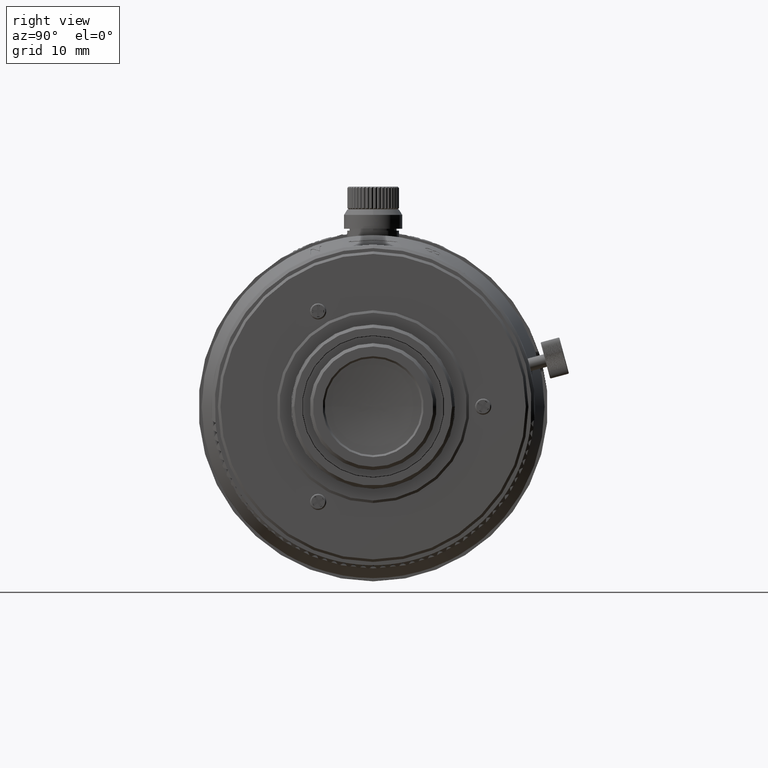
[diagram: clean part render]
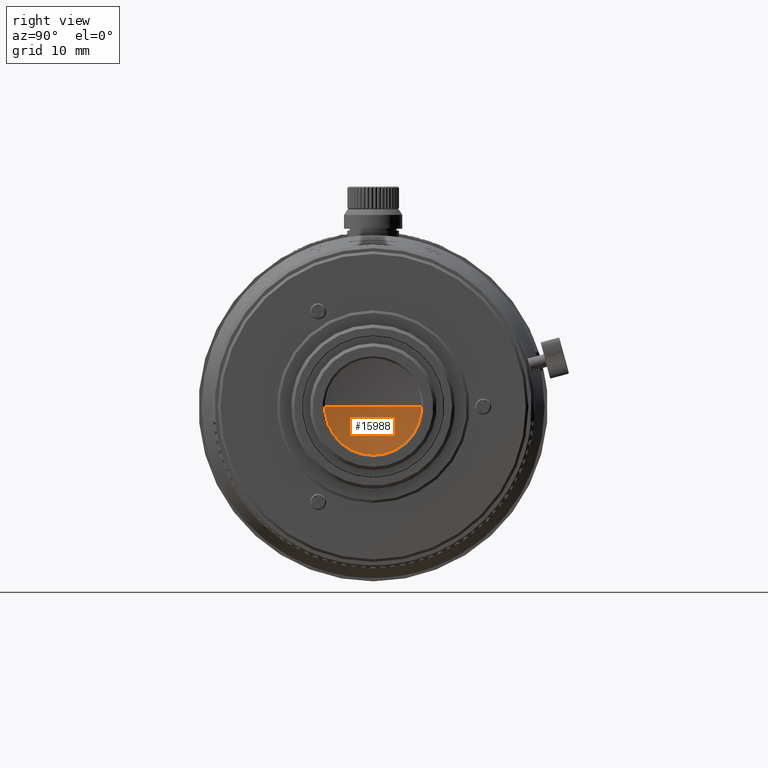
[diagram: same view with one face highlighted and labeled with its STEP entity id]
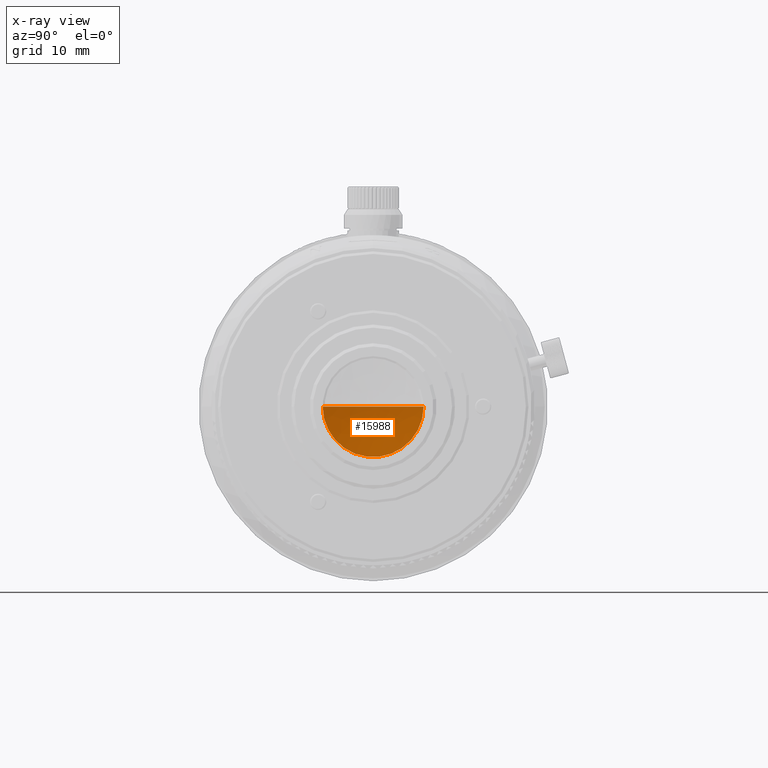
[diagram: x-ray of the same camera — body ghosted, the highlighted face saturated]
A machine part, right view. The second image highlights one B-rep face of the part: STEP entity #15988.
The next image is the same camera in x-ray: the body ghosted, the highlighted face saturated — about 0% of this face is hidden behind the body in this view.
In plain terms, the highlighted face is a freeform B-spline surface patch.
Its self-contained STEP definition (entity closure, byte-faithful):
#13 = CARTESIAN_POINT ( 'NONE',  ( 2687.098544783024408, 1135.370208846026799, -5.218483078053726132 ) ) ;
#2168 = CARTESIAN_POINT ( 'NONE',  ( 2687.609112648156497, 1124.960967475150483, 9.552244827424514200E-16 ) ) ;
#5192 = CARTESIAN_POINT ( 'NONE',  ( 2687.098544783023499, 1130.151725767972948, 3.195399298971773792E-16 ) ) ;
#5459 = CARTESIAN_POINT ( 'NONE',  ( 2687.609113230251751, 1132.760967307000101, 0.000000000000000000 ) ) ;
#5739 = VERTEX_POINT ( 'NONE', #42647 ) ;
#6766 = CARTESIAN_POINT ( 'NONE',  ( 2687.609113155169325, 1140.560967072188532, -15.59999953037704934 ) ) ;
#9187 = ORIENTED_EDGE ( 'NONE', *, *, #13316, .T. ) ;
#10018 = FACE_OUTER_BOUND ( 'NONE', #26251, .T. ) ;
#11165 = CARTESIAN_POINT ( 'NONE',  ( 2687.268972002157170, 1137.973915865755089, -10.42589711751018555 ) ) ;
#13316 = EDGE_CURVE ( 'NONE', #5739, #46797, #70165, .T. ) ;
#15988 = ADVANCED_FACE ( 'NONE', ( #10018 ), #65308, .T. ) ;
#17146 = CARTESIAN_POINT ( 'NONE',  ( 2687.098544849000518, 1132.760967307000328, -4.440892098500625657E-13 ) ) ;
#17915 = CARTESIAN_POINT ( 'NONE',  ( 2687.098544783023499, 1135.370208846026799, -6.390798597943358257E-16 ) ) ;
#18081 = CARTESIAN_POINT ( 'NONE',  ( 2746.934468848907727, 1132.760968820016160, 0.000000000000000000 ) ) ;
#18701 = CARTESIAN_POINT ( 'NONE',  ( 2687.098544783024408, 1130.151725767973176, -5.218483078053725244 ) ) ;
#19653 = DIRECTION ( 'NONE',  ( -0.000000000000000000, -0.000000000000000000, 1.000000000000000000 ) ) ;
#21354 = AXIS2_PLACEMENT_3D ( 'NONE', #5459, #28556, #22592 ) ;
#21439 = EDGE_CURVE ( 'NONE', #39484, #5739, #69300, .T. ) ;
#22592 = DIRECTION ( 'NONE',  ( 0.000000000000000000, 1.000000000000000000, 0.000000000000000000 ) ) ;
#23890 = CARTESIAN_POINT ( 'NONE',  ( 2687.609113155169325, 1140.560967072188760, -1.910448949157607293E-15 ) ) ;
#26251 = EDGE_LOOP ( 'NONE', ( #30364, #9187, #76654 ) ) ;
#28304 = CARTESIAN_POINT ( 'NONE',  ( 2687.609112648156497, 1140.560967138849719, 0.000000000000000000 ) ) ;
#28556 = DIRECTION ( 'NONE',  ( -1.000000000000000000, -0.000000000000000000, -0.000000000000000000 ) ) ;
#30364 = ORIENTED_EDGE ( 'NONE', *, *, #21439, .T. ) ;
#36322 = DIRECTION ( 'NONE',  ( -0.9999999999999997780, -2.528584948398075631E-08, 0.000000000000000000 ) ) ;
#37067 = DIRECTION ( 'NONE',  ( -0.9999999999999997780, 2.528607955923630562E-08, -3.096656984562296860E-24 ) ) ;
#37213 = AXIS2_PLACEMENT_3D ( 'NONE', #55357, #54952, #37067 ) ;
#37605 = AXIS2_PLACEMENT_3D ( 'NONE', #18081, #19653, #36322 ) ;
#39484 = VERTEX_POINT ( 'NONE', #28304 ) ;
#42518 = CARTESIAN_POINT ( 'NONE',  ( 2687.609113155169325, 1124.960967541811442, -15.59999953037704579 ) ) ;
#42647 = CARTESIAN_POINT ( 'NONE',  ( 2687.098544849000973, 1132.760967307000101, 1.359631073446891101E-29 ) ) ;
#45420 = CIRCLE ( 'NONE', #21354, 7.800000336252166377 ) ;
#46216 = EDGE_CURVE ( 'NONE', #39484, #46797, #45420, .T. ) ;
#46797 = VERTEX_POINT ( 'NONE', #2168 ) ;
#47707 = CARTESIAN_POINT ( 'NONE',  ( 2687.268972002157170, 1127.548018748244658, 6.384020766599200333E-16 ) ) ;
#48094 = CARTESIAN_POINT ( 'NONE',  ( 2687.098544849000973, 1132.760967306999873, 2.465190328815661892E-29 ) ) ;
#53656 = CARTESIAN_POINT ( 'NONE',  ( 2687.268972002157170, 1137.973915865755089, -1.276804153319856435E-15 ) ) ;
#54432 = CARTESIAN_POINT ( 'NONE',  ( 2687.098544849000518, 1132.760967306999873, -4.440892098500625657E-13 ) ) ;
#54952 = DIRECTION ( 'NONE',  ( -5.191892650796876596E-30, 1.224646799147318201E-16, 1.000000000000000000 ) ) ;
#55357 = CARTESIAN_POINT ( 'NONE',  ( 2746.934468848907727, 1132.760965793983814, 1.852913566339540696E-22 ) ) ;
#60415 = CARTESIAN_POINT ( 'NONE',  ( 2687.609113155169325, 1124.960967541811669, 9.552244745787864889E-16 ) ) ;
#65308 =( BOUNDED_SURFACE ( )  B_SPLINE_SURFACE ( 3, 3, ( 
 ( #48094, #54432, #17146, #65586 ),
 ( #5192, #18701, #13, #17915 ),
 ( #47707, #72702, #11165, #53656 ),
 ( #60415, #42518, #6766, #23890 ) ),
 .UNSPECIFIED., .F., .F., .F. ) 
 B_SPLINE_SURFACE_WITH_KNOTS ( ( 4, 4 ),
 ( 4, 4 ),
 ( 0.000000000000000000, 0.9803783948602217135 ),
 ( 0.000000000000000000, 1.000000000000000000 ),
 .UNSPECIFIED. ) 
 GEOMETRIC_REPRESENTATION_ITEM ( )  RATIONAL_B_SPLINE_SURFACE ( (
 ( 1.000000000000000000, 0.3333333333333334259, 0.3333333333333334259, 1.000000000000000000),
 ( 0.9985479130528637226, 0.3328493043509546667, 0.3328493043509546667, 0.9985479130528637226),
 ( 0.9985194207761584062, 0.3328398069253862279, 0.3328398069253862279, 0.9985194207761584062),
 ( 0.9999145231698840508, 0.3333048410566281095, 0.3333048410566281095, 0.9999145231698840508) ) ) 
 REPRESENTATION_ITEM ( '' )  SURFACE ( )  );
#65586 = CARTESIAN_POINT ( 'NONE',  ( 2687.098544849000973, 1132.760967307000328, -4.930380657631323784E-29 ) ) ;
#69300 = CIRCLE ( 'NONE', #37605, 59.83592399990646271 ) ;
#70165 = CIRCLE ( 'NONE', #37213, 59.83592399990646271 ) ;
#72702 = CARTESIAN_POINT ( 'NONE',  ( 2687.268972002157170, 1127.548018748244886, -10.42589711751018200 ) ) ;
#76654 = ORIENTED_EDGE ( 'NONE', *, *, #46216, .F. ) ;